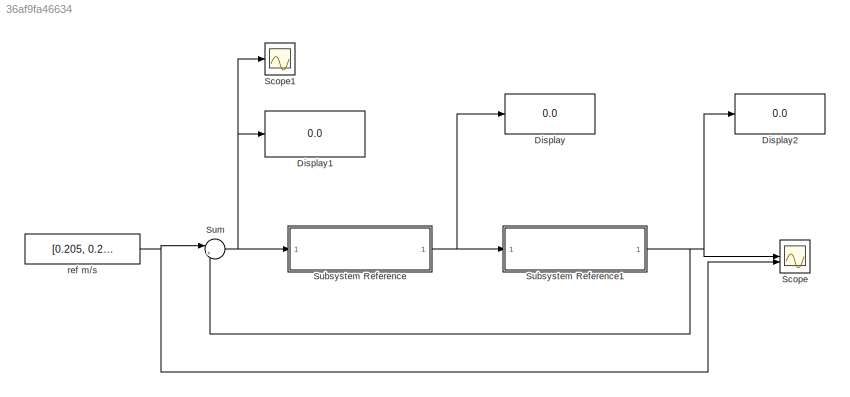
MODEL slx_36af9fa46634
KIND model
CONFIG AbsTol = auto
CONFIG EnableMultiTasking = on
CONFIG FixedStep = auto
CONFIG MaxStep = auto
CONFIG MinStep = auto
CONFIG RelTol = 1e-3
CONFIG SampleTimeConstraint = Unconstrained
CONFIG SolverName = FixedStepAuto
CONFIG StartTime = 0.0
CONFIG StopTime = inf
BLOCK [Display] Display
  Decimation = 1
BLOCK [Display] Display1
  Decimation = 1
BLOCK [Display] Display2
  Decimation = 1
BLOCK [Scope] Scope
  Floating = off
  NumInputPorts = 2
  ScopeSpecificationString = Simulink.scopes.TimeScopeBlockCfg('CurrentConfiguration', extmgr.ConfigurationSet(extmgr.Configuration('Core','General UI',true),extmgr.Configuration('Core','Source UI',true),extmgr.Configuration('Sources','WiredSimulink',true),extmgr.Configuration('Visuals','Time Domain',true,'SerializedDisplays',{struct('MinYLimReal','-0.22475','MaxYLimReal','0.02277','YLabelReal','','MinYLimMag','0.00000','MaxY...<+1420ch>
BLOCK [Scope] Scope1
  Floating = off
  NumInputPorts = 1
  ScopeSpecificationString = Simulink.scopes.TimeScopeBlockCfg('CurrentConfiguration', extmgr.ConfigurationSet(extmgr.Configuration('Core','General UI',true),extmgr.Configuration('Core','Source UI',true),extmgr.Configuration('Sources','WiredSimulink',true,'DataLoggingVariableName','ScopeData1'),extmgr.Configuration('Visuals','Time Domain',true,'SerializedDisplays',{struct('MinYLimReal','-0.22277','MaxYLimReal','0.02475','YLab...<+1401ch>
BLOCK [SubSystem] Subsystem Reference
  ReferencedSubsystem = BCcontroler
BLOCK [SubSystem] Subsystem Reference1
  ReferencedSubsystem = Piero
BLOCK [Sum] Sum
  Inputs = |+-
BLOCK [Constant] ref m//s
  Value = [0.205, 0.205]
NET Subsystem Reference1:1 -> Display2:1, Scope:1, Sum:2
NET Subsystem Reference:1 -> Display:1, Subsystem Reference1:1
NET Sum:1 -> Display1:1, Scope1:1, Subsystem Reference:1
NET ref m//s:1 -> Scope:2, Sum:1
note: NET lines group one-source signal fan-out (src -> all destinations, sorted); 1:1 wires keep LINE
